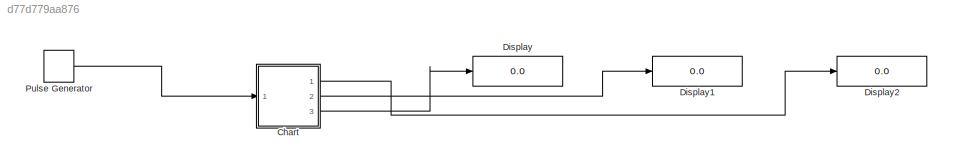
MODEL slx_d77d779aa876
KIND model
CONFIG AbsTol = auto
CONFIG EnableMultiTasking = off
CONFIG FixedStep = auto
CONFIG MaxStep = auto
CONFIG MinStep = auto
CONFIG RelTol = 1e-3
CONFIG SampleTimeConstraint = Unconstrained
CONFIG SolverName = VariableStepAuto
CONFIG StartTime = 0.0
CONFIG StopTime = 10.0
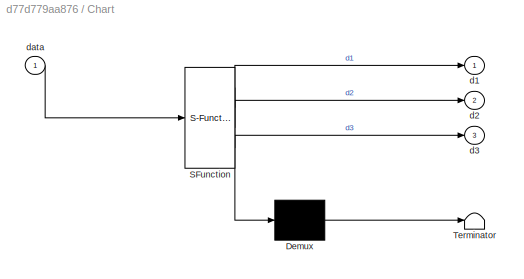
BLOCK [SubSystem] Chart
  ErrorFcn = Stateflow.Translate.translate
  PermitHierarchicalResolution = ExplicitOnly
  Ports = [1, 3]
  RequestExecContextInheritance = off
  SFBlockType = Chart
  TreatAsAtomicUnit = on
BLOCK [Demux] Chart/ Demux 
  Outputs = 1
  Ports = [1, 1]
BLOCK [S-Function] Chart/ SFunction 
  EnableBusSupport = on
  FunctionName = sf_sfun
  PortCounts = [1 4]
  Ports = [1, 4]
  SFcnIsStateOwnerBlock = off
  SFunctionDeploymentMode = off
  Tag = Stateflow S-Function 3
BLOCK [Terminator] Chart/ Terminator 
BLOCK [Outport] Chart/d1
BLOCK [Outport] Chart/d2
  Port = 2
BLOCK [Outport] Chart/d3
  Port = 3
BLOCK [Inport] Chart/data
BLOCK [Display] Display
  Decimation = 1
  Ports = [1]
BLOCK [Display] Display1
  Decimation = 1
  Ports = [1]
BLOCK [Display] Display2
  Decimation = 1
  Ports = [1]
BLOCK [DiscretePulseGenerator] Pulse Generator
  Period = 10
  Ports = [0, 1]
  PulseType = Time based
  PulseWidth = 5
LINE Chart:1 -> Display2:1
LINE Chart:2 -> Display1:1
LINE Chart:3 -> Display:1
LINE Pulse Generator:1 -> Chart:1
CHART Chart states=18 transitions=18
  STATE_LABEL 'digit1'
  STATE_LABEL 'one\nen:\nd1=1'
  STATE_LABEL 'zero\nen:\nd1=0;'
  STATE_LABEL 'two\nen:\nd1=2;'
  STATE_LABEL 'four\nen:\nd1=4;'
  STATE_LABEL 'three\nen:\nd1=3;'
  STATE_LABEL 'inc3'
  STATE_LABEL 'inc1'
  STATE_LABEL 'inc3'
  STATE_LABEL 'inc1'
  STATE_LABEL 'one\nen:\nd1=1'
  STATE_LABEL 'zero\nen:\nd1=0;'
  STATE_LABEL 'two\nen:\nd1=2;'
  STATE_LABEL 'four\nen:\nd1=4;'
  STATE_LABEL 'three\nen:\nd1=3;'
  STATE_LABEL 'digit2'
  STATE_LABEL 'one1\nen:\nd2=1'
  STATE_LABEL 'zero1\nen:\nd2=0;'
  STATE_LABEL 'two1\nen:\nd2=2'
  STATE_LABEL 'four1\nen:\nd2=4;'
  STATE_LABEL 'three1\nen:\nd2=3;'
  STATE_LABEL 'inc2'
  STATE_LABEL 'inc2'
  STATE_LABEL 'inc2'
  STATE_LABEL 'inc2'
  STATE_LABEL 'inc2'
  STATE_LABEL 'one1\nen:\nd2=1'
  STATE_LABEL 'zero1\nen:\nd2=0;'
  STATE_LABEL 'two1\nen:\nd2=2'
  STATE_LABEL 'four1\nen:\nd2=4;'
  STATE_LABEL 'three1\nen:\nd2=3;'
  STATE_LABEL 'digit3'
  STATE_LABEL 'one2\nen:\nd3=1'
  STATE_LABEL 'zero2\nen:\nd3=0;'
  STATE_LABEL 'two2\nen:\nd3=2;'
  STATE_LABEL 'three2\nen:\nd3=3;'
  STATE_LABEL 'four2\nen:\nd3=4;'
  STATE_LABEL 'inc3'
  STATE_LABEL 'inc3'
  STATE_LABEL 'inc3'
CHART  states=0 transitions=0
